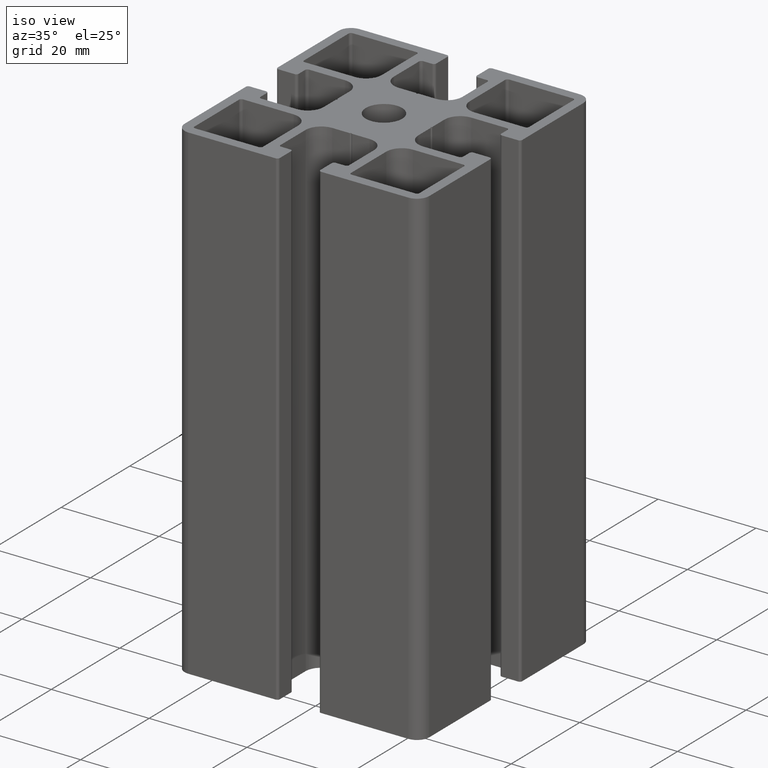
[diagram: clean part render]
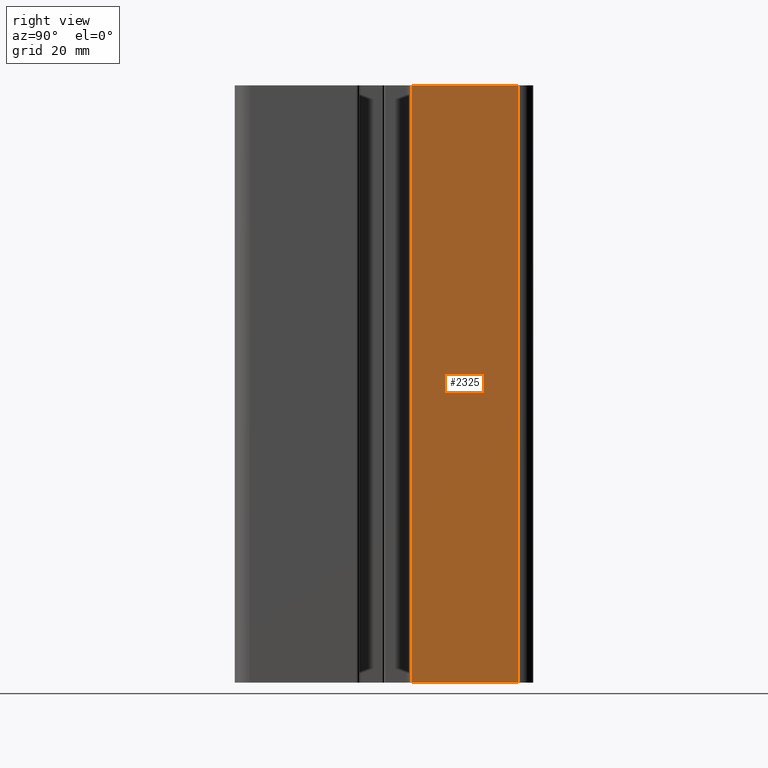
[diagram: tour spotlight — one face highlighted and labeled with its STEP entity id]
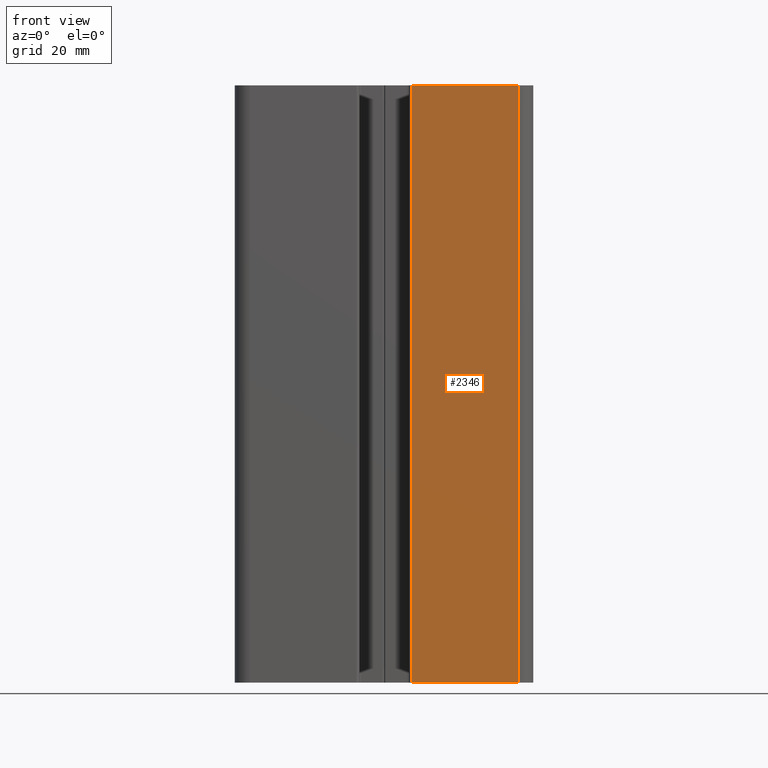
[diagram: tour spotlight — one face highlighted and labeled with its STEP entity id]
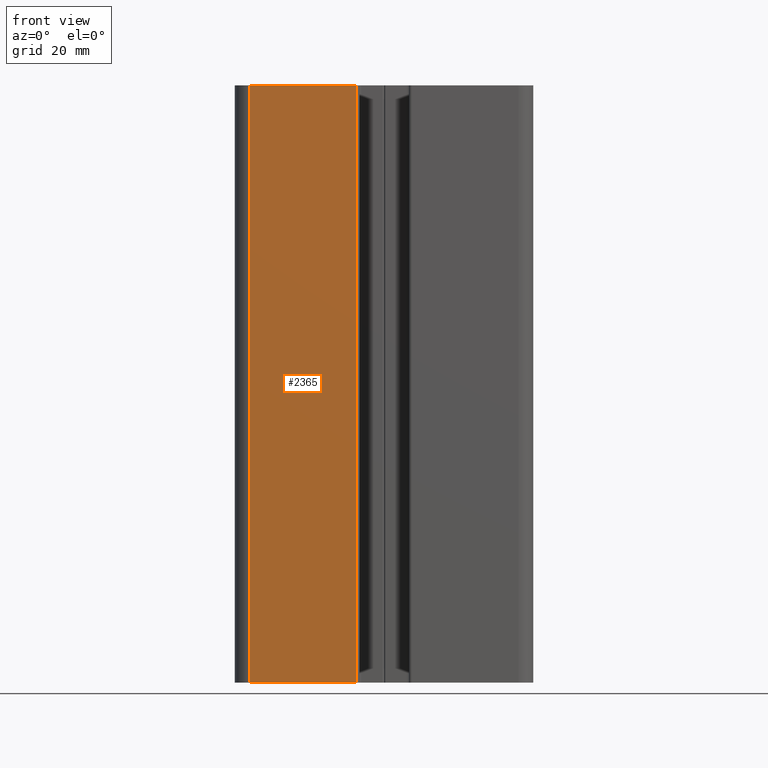
[diagram: tour spotlight — one face highlighted and labeled with its STEP entity id]
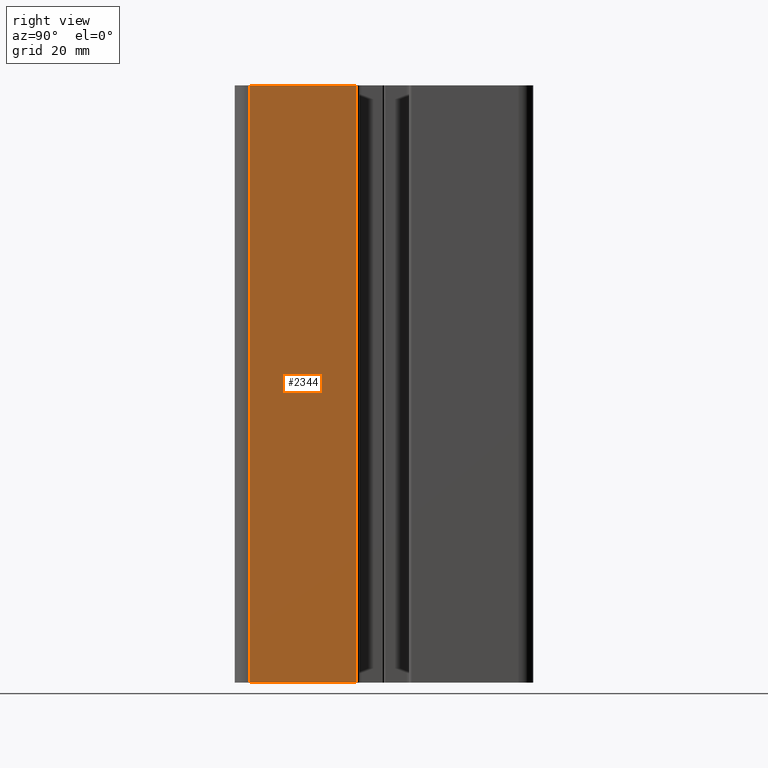
[diagram: tour spotlight — one face highlighted and labeled with its STEP entity id]
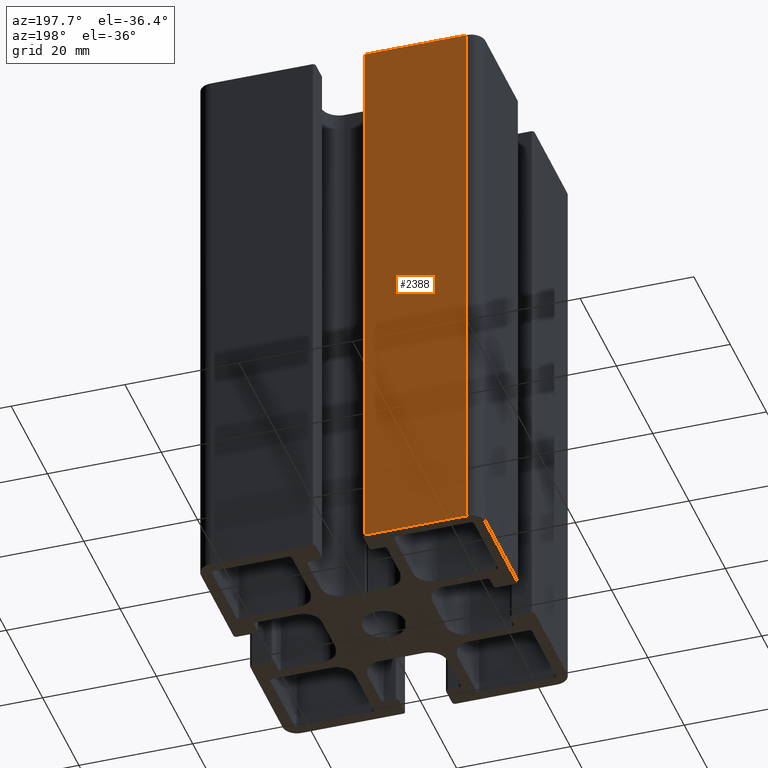
[diagram: tour spotlight — one face highlighted and labeled with its STEP entity id]
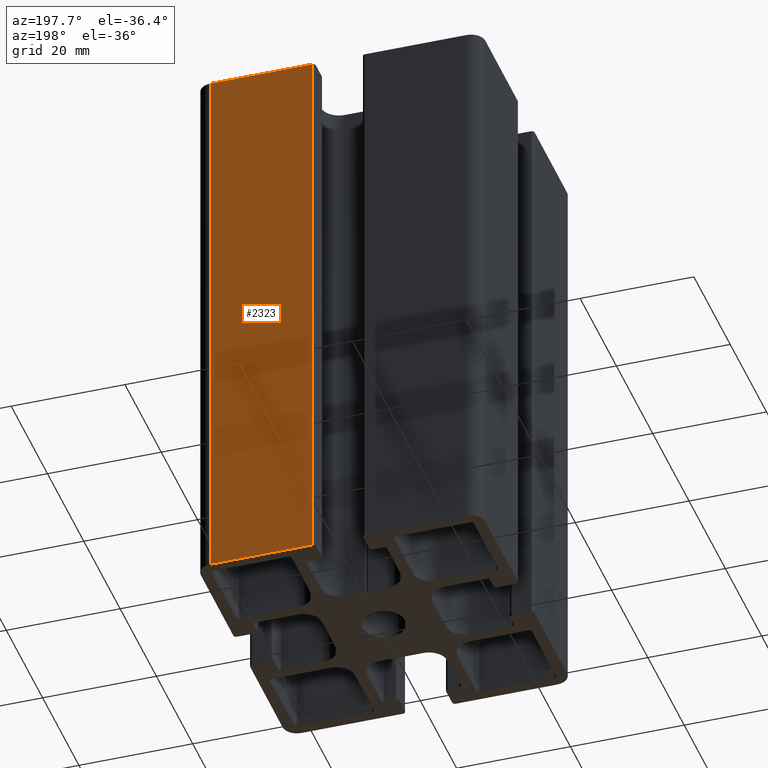
[diagram: tour spotlight — one face highlighted and labeled with its STEP entity id]
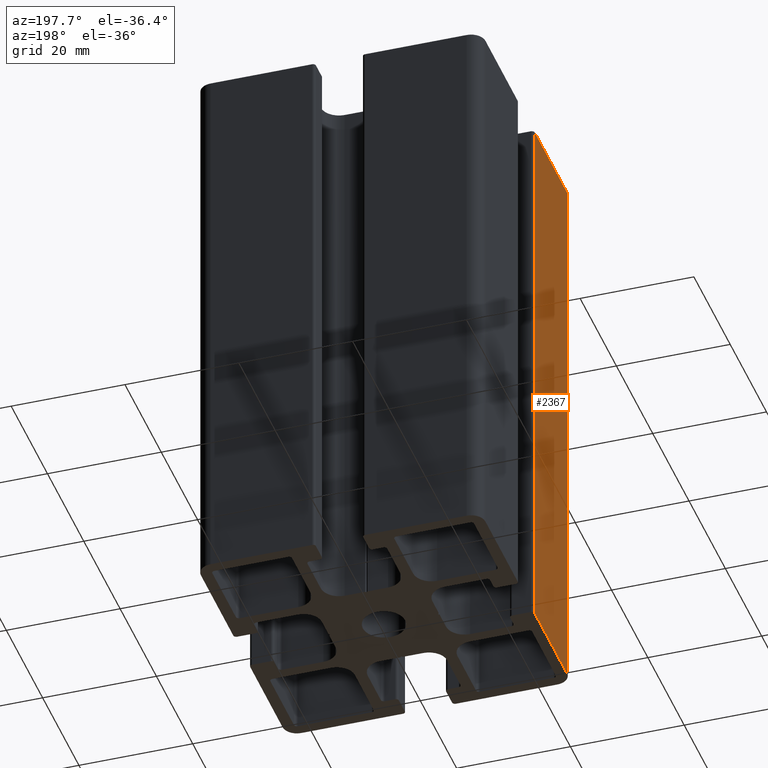
[diagram: tour spotlight — one face highlighted and labeled with its STEP entity id]
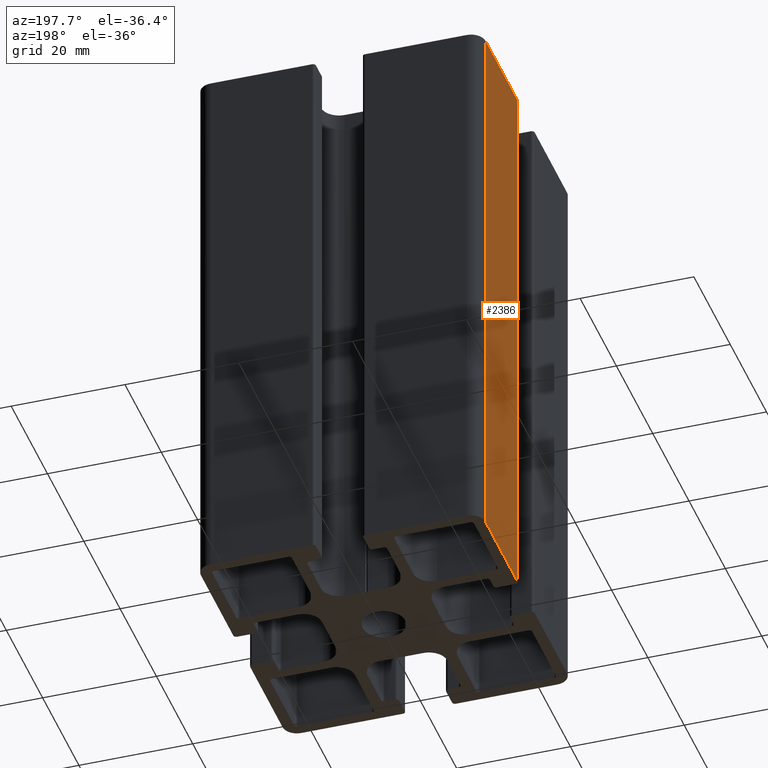
[diagram: tour spotlight — one face highlighted and labeled with its STEP entity id]
A machine part: a face-by-face anatomy tour. The part has 119 B-rep faces; the first image is the clean iso view, then the 8 largest visible faces are spotlighted one at a time (largest first), each with its STEP entity span.

Face 1 — right view, entity #2325. In plain terms, the highlighted planar face has unit normal (1, -0, 0).
Definition (entity closure, byte-faithful):
#53=PLANE('',#2498);
#145=FACE_OUTER_BOUND('',#265,.T.);
#265=EDGE_LOOP('',(#1729,#1730,#1731,#1732));
#447=LINE('',#3634,#691);
#448=LINE('',#3637,#692);
#449=LINE('',#3639,#693);
#450=LINE('',#3640,#694);
#691=VECTOR('',#2936,100.);
#692=VECTOR('',#2939,17.8500000000002);
#693=VECTOR('',#2940,17.8500000000002);
#694=VECTOR('',#2941,100.);
#1041=VERTEX_POINT('',#3630);
#1042=VERTEX_POINT('',#3632);
#1043=VERTEX_POINT('',#3636);
#1044=VERTEX_POINT('',#3638);
#1327=EDGE_CURVE('',#1041,#1042,#447,.T.);
#1328=EDGE_CURVE('',#1043,#1041,#448,.T.);
#1329=EDGE_CURVE('',#1044,#1042,#449,.T.);
#1330=EDGE_CURVE('',#1043,#1044,#450,.T.);
#1729=ORIENTED_EDGE('',*,*,#1328,.T.);
#1730=ORIENTED_EDGE('',*,*,#1327,.T.);
#1731=ORIENTED_EDGE('',*,*,#1329,.F.);
#1732=ORIENTED_EDGE('',*,*,#1330,.F.);
#2325=ADVANCED_FACE('',(#145),#53,.T.);
#2498=AXIS2_PLACEMENT_3D('',#3635,#2937,#2938);
#2936=DIRECTION('',(0.,0.,1.));
#2937=DIRECTION('center_axis',(1.,-5.97094735932852E-15,0.));
#2938=DIRECTION('ref_axis',(6.03961325396085E-15,1.,0.));
#2939=DIRECTION('',(5.97094735932852E-15,1.,0.));
#2940=DIRECTION('',(5.97094735932852E-15,1.,0.));
#2941=DIRECTION('',(0.,0.,1.));
#3630=CARTESIAN_POINT('',(25.0000000000001,22.5000000000016,0.));
#3632=CARTESIAN_POINT('',(25.0000000000001,22.5000000000016,100.));
#3634=CARTESIAN_POINT('',(25.0000000000001,22.5000000000016,0.));
#3635=CARTESIAN_POINT('Origin',(25.,4.65000000000146,0.));
#3636=CARTESIAN_POINT('',(25.,4.65000000000146,0.));
#3637=CARTESIAN_POINT('',(25.,4.65000000000146,0.));
#3638=CARTESIAN_POINT('',(25.,4.65000000000146,100.));
#3639=CARTESIAN_POINT('',(25.,4.65000000000146,100.));
#3640=CARTESIAN_POINT('',(25.,4.65000000000146,0.));

Face 2 — front view, entity #2346. In plain terms, the highlighted planar face has unit normal (0, -1, 0).
Definition (entity closure, byte-faithful):
#65=PLANE('',#2537);
#166=FACE_OUTER_BOUND('',#286,.T.);
#286=EDGE_LOOP('',(#1813,#1814,#1815,#1816));
#492=LINE('',#3760,#736);
#493=LINE('',#3763,#737);
#494=LINE('',#3765,#738);
#495=LINE('',#3766,#739);
#736=VECTOR('',#3059,100.);
#737=VECTOR('',#3062,17.8500000000001);
#738=VECTOR('',#3063,17.8500000000001);
#739=VECTOR('',#3064,100.);
#1083=VERTEX_POINT('',#3756);
#1084=VERTEX_POINT('',#3758);
#1085=VERTEX_POINT('',#3762);
#1086=VERTEX_POINT('',#3764);
#1390=EDGE_CURVE('',#1083,#1084,#492,.T.);
#1391=EDGE_CURVE('',#1085,#1083,#493,.T.);
#1392=EDGE_CURVE('',#1086,#1084,#494,.T.);
#1393=EDGE_CURVE('',#1085,#1086,#495,.T.);
#1813=ORIENTED_EDGE('',*,*,#1391,.T.);
#1814=ORIENTED_EDGE('',*,*,#1390,.T.);
#1815=ORIENTED_EDGE('',*,*,#1392,.F.);
#1816=ORIENTED_EDGE('',*,*,#1393,.F.);
#2346=ADVANCED_FACE('',(#166),#65,.T.);
#2537=AXIS2_PLACEMENT_3D('',#3761,#3060,#3061);
#3059=DIRECTION('',(0.,0.,1.));
#3060=DIRECTION('center_axis',(0.,-1.,0.));
#3061=DIRECTION('ref_axis',(1.,0.,0.));
#3062=DIRECTION('',(1.,0.,0.));
#3063=DIRECTION('',(1.,0.,0.));
#3064=DIRECTION('',(0.,0.,1.));
#3756=CARTESIAN_POINT('',(22.5000000000002,-25.0000000000016,0.));
#3758=CARTESIAN_POINT('',(22.5000000000002,-25.0000000000016,100.));
#3760=CARTESIAN_POINT('',(22.5000000000002,-25.0000000000016,0.));
#3761=CARTESIAN_POINT('Origin',(4.6500000000001,-25.0000000000016,0.));
#3762=CARTESIAN_POINT('',(4.6500000000001,-25.0000000000016,0.));
#3763=CARTESIAN_POINT('',(4.6500000000001,-25.0000000000016,0.));
#3764=CARTESIAN_POINT('',(4.6500000000001,-25.0000000000016,100.));
#3765=CARTESIAN_POINT('',(4.6500000000001,-25.0000000000016,100.));
#3766=CARTESIAN_POINT('',(4.6500000000001,-25.0000000000016,0.));

Face 3 — front view, entity #2365. In plain terms, the highlighted planar face has unit normal (0, -1, 0).
Definition (entity closure, byte-faithful):
#76=PLANE('',#2572);
#185=FACE_OUTER_BOUND('',#305,.T.);
#305=EDGE_LOOP('',(#1889,#1890,#1891,#1892));
#533=LINE('',#3874,#777);
#534=LINE('',#3877,#778);
#535=LINE('',#3879,#779);
#536=LINE('',#3880,#780);
#777=VECTOR('',#3170,100.);
#778=VECTOR('',#3173,17.85);
#779=VECTOR('',#3174,17.85);
#780=VECTOR('',#3175,100.);
#1121=VERTEX_POINT('',#3870);
#1122=VERTEX_POINT('',#3872);
#1123=VERTEX_POINT('',#3876);
#1124=VERTEX_POINT('',#3878);
#1447=EDGE_CURVE('',#1121,#1122,#533,.T.);
#1448=EDGE_CURVE('',#1123,#1121,#534,.T.);
#1449=EDGE_CURVE('',#1124,#1122,#535,.T.);
#1450=EDGE_CURVE('',#1123,#1124,#536,.T.);
#1889=ORIENTED_EDGE('',*,*,#1448,.T.);
#1890=ORIENTED_EDGE('',*,*,#1447,.T.);
#1891=ORIENTED_EDGE('',*,*,#1449,.F.);
#1892=ORIENTED_EDGE('',*,*,#1450,.F.);
#2365=ADVANCED_FACE('',(#185),#76,.T.);
#2572=AXIS2_PLACEMENT_3D('',#3875,#3171,#3172);
#3170=DIRECTION('',(0.,0.,1.));
#3171=DIRECTION('center_axis',(0.,-1.,0.));
#3172=DIRECTION('ref_axis',(1.,0.,0.));
#3173=DIRECTION('',(1.,0.,0.));
#3174=DIRECTION('',(1.,0.,0.));
#3175=DIRECTION('',(0.,0.,1.));
#3870=CARTESIAN_POINT('',(-4.65000000000008,-25.0000000000016,0.));
#3872=CARTESIAN_POINT('',(-4.65000000000008,-25.0000000000016,100.));
#3874=CARTESIAN_POINT('',(-4.65000000000008,-25.0000000000016,0.));
#3875=CARTESIAN_POINT('Origin',(-22.5000000000001,-25.0000000000016,0.));
#3876=CARTESIAN_POINT('',(-22.5000000000001,-25.0000000000016,0.));
#3877=CARTESIAN_POINT('',(-22.5000000000001,-25.0000000000016,0.));
#3878=CARTESIAN_POINT('',(-22.5000000000001,-25.0000000000016,100.));
#3879=CARTESIAN_POINT('',(-22.5000000000001,-25.0000000000016,100.));
#3880=CARTESIAN_POINT('',(-22.5000000000001,-25.0000000000016,0.));

Face 4 — right view, entity #2344. In plain terms, the highlighted planar face has unit normal (1, 0, 0).
Definition (entity closure, byte-faithful):
#64=PLANE('',#2533);
#164=FACE_OUTER_BOUND('',#284,.T.);
#284=EDGE_LOOP('',(#1805,#1806,#1807,#1808));
#488=LINE('',#3748,#732);
#489=LINE('',#3751,#733);
#490=LINE('',#3753,#734);
#491=LINE('',#3754,#735);
#732=VECTOR('',#3047,100.);
#733=VECTOR('',#3050,17.8500000000001);
#734=VECTOR('',#3051,17.8500000000001);
#735=VECTOR('',#3052,100.);
#1079=VERTEX_POINT('',#3744);
#1080=VERTEX_POINT('',#3746);
#1081=VERTEX_POINT('',#3750);
#1082=VERTEX_POINT('',#3752);
#1384=EDGE_CURVE('',#1079,#1080,#488,.T.);
#1385=EDGE_CURVE('',#1081,#1079,#489,.T.);
#1386=EDGE_CURVE('',#1082,#1080,#490,.T.);
#1387=EDGE_CURVE('',#1081,#1082,#491,.T.);
#1805=ORIENTED_EDGE('',*,*,#1385,.T.);
#1806=ORIENTED_EDGE('',*,*,#1384,.T.);
#1807=ORIENTED_EDGE('',*,*,#1386,.F.);
#1808=ORIENTED_EDGE('',*,*,#1387,.F.);
#2344=ADVANCED_FACE('',(#164),#64,.T.);
#2533=AXIS2_PLACEMENT_3D('',#3749,#3048,#3049);
#3047=DIRECTION('',(0.,0.,1.));
#3048=DIRECTION('center_axis',(1.,7.96126314577137E-15,0.));
#3049=DIRECTION('ref_axis',(-7.8159700933611E-15,1.,0.));
#3050=DIRECTION('',(-7.96126314577137E-15,1.,0.));
#3051=DIRECTION('',(-7.96126314577137E-15,1.,0.));
#3052=DIRECTION('',(0.,0.,1.));
#3744=CARTESIAN_POINT('',(25.,-4.65000000000146,0.));
#3746=CARTESIAN_POINT('',(25.,-4.65000000000146,100.));
#3748=CARTESIAN_POINT('',(25.,-4.65000000000146,0.));
#3749=CARTESIAN_POINT('Origin',(25.0000000000002,-22.5000000000016,0.));
#3750=CARTESIAN_POINT('',(25.0000000000002,-22.5000000000016,0.));
#3751=CARTESIAN_POINT('',(25.0000000000002,-22.5000000000016,0.));
#3752=CARTESIAN_POINT('',(25.0000000000002,-22.5000000000016,100.));
#3753=CARTESIAN_POINT('',(25.0000000000002,-22.5000000000016,100.));
#3754=CARTESIAN_POINT('',(25.0000000000002,-22.5000000000016,0.));

Face 5 — auxiliary view, entity #2388. In plain terms, the highlighted planar face has unit normal (-0, 1, 0).
Definition (entity closure, byte-faithful):
#89=PLANE('',#2615);
#208=FACE_OUTER_BOUND('',#328,.T.);
#328=EDGE_LOOP('',(#1981,#1982,#1983,#1984));
#405=LINE('',#3517,#649);
#582=LINE('',#4012,#826);
#583=LINE('',#4014,#827);
#584=LINE('',#4015,#828);
#649=VECTOR('',#2822,100.);
#826=VECTOR('',#3305,100.);
#827=VECTOR('',#3308,17.85);
#828=VECTOR('',#3309,17.85);
#1002=VERTEX_POINT('',#3514);
#1003=VERTEX_POINT('',#3516);
#1167=VERTEX_POINT('',#4008);
#1168=VERTEX_POINT('',#4010);
#1268=EDGE_CURVE('',#1002,#1003,#405,.T.);
#1516=EDGE_CURVE('',#1167,#1168,#582,.T.);
#1517=EDGE_CURVE('',#1002,#1167,#583,.T.);
#1518=EDGE_CURVE('',#1003,#1168,#584,.T.);
#1981=ORIENTED_EDGE('',*,*,#1517,.T.);
#1982=ORIENTED_EDGE('',*,*,#1516,.T.);
#1983=ORIENTED_EDGE('',*,*,#1518,.F.);
#1984=ORIENTED_EDGE('',*,*,#1268,.F.);
#2388=ADVANCED_FACE('',(#208),#89,.T.);
#2615=AXIS2_PLACEMENT_3D('',#4013,#3306,#3307);
#2822=DIRECTION('',(0.,0.,1.));
#3305=DIRECTION('',(0.,0.,1.));
#3306=DIRECTION('center_axis',(-4.97578946610714E-16,1.,0.));
#3307=DIRECTION('ref_axis',(-1.,-3.5527136788005E-16,0.));
#3308=DIRECTION('',(-1.,-4.97578946610714E-16,0.));
#3309=DIRECTION('',(-1.,-4.97578946610714E-16,0.));
#3514=CARTESIAN_POINT('',(-4.65000000000008,25.0000000000016,0.));
#3516=CARTESIAN_POINT('',(-4.65000000000008,25.0000000000016,100.));
#3517=CARTESIAN_POINT('',(-4.65000000000008,25.0000000000016,0.));
#4008=CARTESIAN_POINT('',(-22.5000000000001,25.0000000000016,0.));
#4010=CARTESIAN_POINT('',(-22.5000000000001,25.0000000000016,100.));
#4012=CARTESIAN_POINT('',(-22.5000000000001,25.0000000000016,0.));
#4013=CARTESIAN_POINT('Origin',(-4.65000000000008,25.0000000000016,0.));
#4014=CARTESIAN_POINT('',(-4.65000000000008,25.0000000000016,0.));
#4015=CARTESIAN_POINT('',(-4.65000000000008,25.0000000000016,100.));

Face 6 — auxiliary view, entity #2323. In plain terms, the highlighted planar face has unit normal (0, 1, 0).
Definition (entity closure, byte-faithful):
#52=PLANE('',#2494);
#143=FACE_OUTER_BOUND('',#263,.T.);
#263=EDGE_LOOP('',(#1721,#1722,#1723,#1724));
#443=LINE('',#3622,#687);
#444=LINE('',#3625,#688);
#445=LINE('',#3627,#689);
#446=LINE('',#3628,#690);
#687=VECTOR('',#2924,100.);
#688=VECTOR('',#2927,17.8500000000001);
#689=VECTOR('',#2928,17.8500000000001);
#690=VECTOR('',#2929,100.);
#1037=VERTEX_POINT('',#3618);
#1038=VERTEX_POINT('',#3620);
#1039=VERTEX_POINT('',#3624);
#1040=VERTEX_POINT('',#3626);
#1321=EDGE_CURVE('',#1037,#1038,#443,.T.);
#1322=EDGE_CURVE('',#1039,#1037,#444,.T.);
#1323=EDGE_CURVE('',#1040,#1038,#445,.T.);
#1324=EDGE_CURVE('',#1039,#1040,#446,.T.);
#1721=ORIENTED_EDGE('',*,*,#1322,.T.);
#1722=ORIENTED_EDGE('',*,*,#1321,.T.);
#1723=ORIENTED_EDGE('',*,*,#1323,.F.);
#1724=ORIENTED_EDGE('',*,*,#1324,.F.);
#2323=ADVANCED_FACE('',(#143),#52,.T.);
#2494=AXIS2_PLACEMENT_3D('',#3623,#2925,#2926);
#2924=DIRECTION('',(0.,0.,1.));
#2925=DIRECTION('center_axis',(0.,1.,0.));
#2926=DIRECTION('ref_axis',(-1.,0.,0.));
#2927=DIRECTION('',(-1.,0.,0.));
#2928=DIRECTION('',(-1.,0.,0.));
#2929=DIRECTION('',(0.,0.,1.));
#3618=CARTESIAN_POINT('',(4.6500000000001,25.0000000000016,0.));
#3620=CARTESIAN_POINT('',(4.6500000000001,25.0000000000016,100.));
#3622=CARTESIAN_POINT('',(4.6500000000001,25.0000000000016,0.));
#3623=CARTESIAN_POINT('Origin',(22.5000000000002,25.0000000000016,0.));
#3624=CARTESIAN_POINT('',(22.5000000000002,25.0000000000016,0.));
#3625=CARTESIAN_POINT('',(22.5000000000002,25.0000000000016,0.));
#3626=CARTESIAN_POINT('',(22.5000000000002,25.0000000000016,100.));
#3627=CARTESIAN_POINT('',(22.5000000000002,25.0000000000016,100.));
#3628=CARTESIAN_POINT('',(22.5000000000002,25.0000000000016,0.));

Face 7 — auxiliary view, entity #2367. In plain terms, the highlighted planar face has unit normal (-1, 0, 0).
Definition (entity closure, byte-faithful):
#77=PLANE('',#2576);
#187=FACE_OUTER_BOUND('',#307,.T.);
#307=EDGE_LOOP('',(#1897,#1898,#1899,#1900));
#537=LINE('',#3886,#781);
#538=LINE('',#3889,#782);
#539=LINE('',#3891,#783);
#540=LINE('',#3892,#784);
#781=VECTOR('',#3182,100.);
#782=VECTOR('',#3185,17.8500000000001);
#783=VECTOR('',#3186,17.8500000000001);
#784=VECTOR('',#3187,100.);
#1125=VERTEX_POINT('',#3882);
#1126=VERTEX_POINT('',#3884);
#1127=VERTEX_POINT('',#3888);
#1128=VERTEX_POINT('',#3890);
#1453=EDGE_CURVE('',#1125,#1126,#537,.T.);
#1454=EDGE_CURVE('',#1127,#1125,#538,.T.);
#1455=EDGE_CURVE('',#1128,#1126,#539,.T.);
#1456=EDGE_CURVE('',#1127,#1128,#540,.T.);
#1897=ORIENTED_EDGE('',*,*,#1454,.T.);
#1898=ORIENTED_EDGE('',*,*,#1453,.T.);
#1899=ORIENTED_EDGE('',*,*,#1455,.F.);
#1900=ORIENTED_EDGE('',*,*,#1456,.F.);
#2367=ADVANCED_FACE('',(#187),#77,.T.);
#2576=AXIS2_PLACEMENT_3D('',#3887,#3183,#3184);
#3182=DIRECTION('',(0.,0.,1.));
#3183=DIRECTION('center_axis',(-1.,0.,0.));
#3184=DIRECTION('ref_axis',(0.,-1.,0.));
#3185=DIRECTION('',(0.,-1.,0.));
#3186=DIRECTION('',(0.,-1.,0.));
#3187=DIRECTION('',(0.,0.,1.));
#3882=CARTESIAN_POINT('',(-25.,-22.5000000000016,0.));
#3884=CARTESIAN_POINT('',(-25.,-22.5000000000016,100.));
#3886=CARTESIAN_POINT('',(-25.,-22.5000000000016,0.));
#3887=CARTESIAN_POINT('Origin',(-25.,-4.65000000000146,0.));
#3888=CARTESIAN_POINT('',(-25.,-4.65000000000146,0.));
#3889=CARTESIAN_POINT('',(-25.,-4.65000000000146,0.));
#3890=CARTESIAN_POINT('',(-25.,-4.65000000000146,100.));
#3891=CARTESIAN_POINT('',(-25.,-4.65000000000146,100.));
#3892=CARTESIAN_POINT('',(-25.,-4.65000000000146,0.));

Face 8 — auxiliary view, entity #2386. In plain terms, the highlighted planar face has unit normal (-1, -0, 0).
Definition (entity closure, byte-faithful):
#88=PLANE('',#2611);
#206=FACE_OUTER_BOUND('',#326,.T.);
#326=EDGE_LOOP('',(#1973,#1974,#1975,#1976));
#578=LINE('',#4000,#822);
#579=LINE('',#4003,#823);
#580=LINE('',#4005,#824);
#581=LINE('',#4006,#825);
#822=VECTOR('',#3293,100.);
#823=VECTOR('',#3296,17.8500000000002);
#824=VECTOR('',#3297,17.8500000000002);
#825=VECTOR('',#3298,100.);
#1163=VERTEX_POINT('',#3996);
#1164=VERTEX_POINT('',#3998);
#1165=VERTEX_POINT('',#4002);
#1166=VERTEX_POINT('',#4004);
#1510=EDGE_CURVE('',#1163,#1164,#578,.T.);
#1511=EDGE_CURVE('',#1165,#1163,#579,.T.);
#1512=EDGE_CURVE('',#1166,#1164,#580,.T.);
#1513=EDGE_CURVE('',#1165,#1166,#581,.T.);
#1973=ORIENTED_EDGE('',*,*,#1511,.T.);
#1974=ORIENTED_EDGE('',*,*,#1510,.T.);
#1975=ORIENTED_EDGE('',*,*,#1512,.F.);
#1976=ORIENTED_EDGE('',*,*,#1513,.F.);
#2386=ADVANCED_FACE('',(#206),#88,.T.);
#2611=AXIS2_PLACEMENT_3D('',#4001,#3294,#3295);
#3293=DIRECTION('',(0.,0.,1.));
#3294=DIRECTION('center_axis',(-1.,-1.49273683983213E-15,0.));
#3295=DIRECTION('ref_axis',(1.4210854715202E-15,-1.,0.));
#3296=DIRECTION('',(1.49273683983213E-15,-1.,0.));
#3297=DIRECTION('',(1.49273683983213E-15,-1.,0.));
#3298=DIRECTION('',(0.,0.,1.));
#3996=CARTESIAN_POINT('',(-25.,4.65000000000146,0.));
#3998=CARTESIAN_POINT('',(-25.,4.65000000000146,100.));
#4000=CARTESIAN_POINT('',(-25.,4.65000000000146,0.));
#4001=CARTESIAN_POINT('Origin',(-25.0000000000001,22.5000000000016,0.));
#4002=CARTESIAN_POINT('',(-25.0000000000001,22.5000000000016,0.));
#4003=CARTESIAN_POINT('',(-25.0000000000001,22.5000000000016,0.));
#4004=CARTESIAN_POINT('',(-25.0000000000001,22.5000000000016,100.));
#4005=CARTESIAN_POINT('',(-25.0000000000001,22.5000000000016,100.));
#4006=CARTESIAN_POINT('',(-25.0000000000001,22.5000000000016,0.));